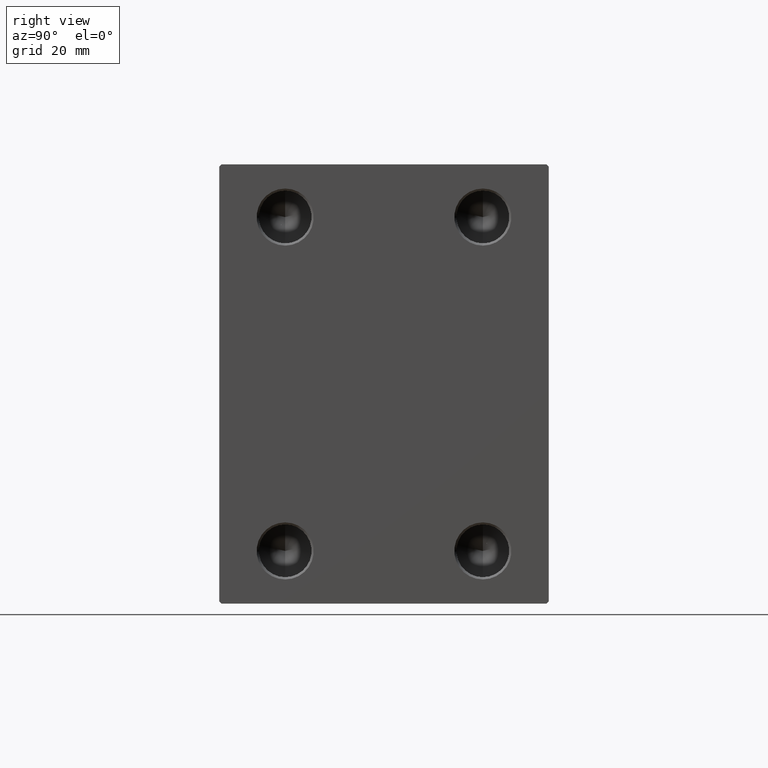
[diagram: clean part render]
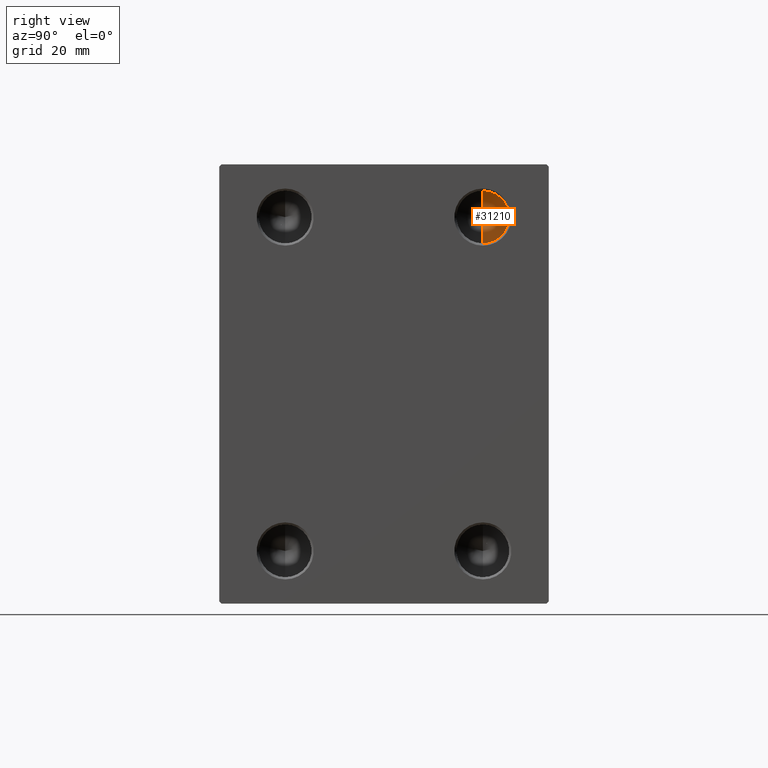
[diagram: same view with one face highlighted and labeled with its STEP entity id]
A machine part, right view. The second image highlights one B-rep face of the part: STEP entity #31210.
In plain terms, the highlighted conical surface has half-angle 59 deg.
Its self-contained STEP definition (entity closure, byte-faithful):
#229 = CIRCLE ( 'NONE', #10296, 5.999999999999998224 ) ;
#2081 = DIRECTION ( 'NONE',  ( 0.000000000000000000, 0.000000000000000000, 1.000000000000000000 ) ) ;
#2721 = DIRECTION ( 'NONE',  ( -1.000000000000000000, 0.000000000000000000, 0.000000000000000000 ) ) ;
#3236 = EDGE_CURVE ( 'NONE', #41316, #31687, #38046, .T. ) ;
#3915 = LINE ( 'NONE', #31357, #40059 ) ;
#8435 = CARTESIAN_POINT ( 'NONE',  ( 78.00000000000000000, 22.50000000000000000, 43.99999999999999289 ) ) ;
#10296 = AXIS2_PLACEMENT_3D ( 'NONE', #33526, #2721, #16441 ) ;
#11071 = VECTOR ( 'NONE', #27923, 1000.000000000000000 ) ;
#14088 = AXIS2_PLACEMENT_3D ( 'NONE', #19184, #22995, #2081 ) ;
#15719 = CARTESIAN_POINT ( 'NONE',  ( 74.39483628583464281, 22.49999999999999289, 37.99999999999999289 ) ) ;
#16101 = ORIENTED_EDGE ( 'NONE', *, *, #20275, .F. ) ;
#16441 = DIRECTION ( 'NONE',  ( 0.000000000000000000, 0.000000000000000000, 1.000000000000000000 ) ) ;
#17162 = CARTESIAN_POINT ( 'NONE',  ( 78.00000000000000000, 22.50000000000000000, 43.99999999999999289 ) ) ;
#19184 = CARTESIAN_POINT ( 'NONE',  ( 78.00000000000000000, 22.50000000000000000, 37.99999999999999289 ) ) ;
#20275 = EDGE_CURVE ( 'NONE', #31687, #41847, #229, .T. ) ;
#22995 = DIRECTION ( 'NONE',  ( 1.000000000000000000, -0.000000000000000000, -0.000000000000000000 ) ) ;
#27923 = DIRECTION ( 'NONE',  ( 0.5150380749100549327, 0.000000000000000000, 0.8571673007021118895 ) ) ;
#27964 = DIRECTION ( 'NONE',  ( 0.5150380749100549327, -1.049727191138618079E-16, -0.8571673007021118895 ) ) ;
#30565 = ORIENTED_EDGE ( 'NONE', *, *, #3236, .F. ) ;
#31210 = ADVANCED_FACE ( 'NONE', ( #36250 ), #37771, .F. ) ;
#31357 = CARTESIAN_POINT ( 'NONE',  ( 78.00000000000000000, 22.50000000000000000, 31.99999999999999289 ) ) ;
#31687 = VERTEX_POINT ( 'NONE', #8435 ) ;
#31982 = EDGE_LOOP ( 'NONE', ( #30565, #35286, #16101 ) ) ;
#33526 = CARTESIAN_POINT ( 'NONE',  ( 78.00000000000000000, 22.50000000000000000, 37.99999999999999289 ) ) ;
#35286 = ORIENTED_EDGE ( 'NONE', *, *, #36790, .T. ) ;
#36250 = FACE_OUTER_BOUND ( 'NONE', #31982, .T. ) ;
#36790 = EDGE_CURVE ( 'NONE', #41316, #41847, #3915, .T. ) ;
#37771 = CONICAL_SURFACE ( 'NONE', #14088, 5.999999999999998224, 1.029744258676653645 ) ;
#38046 = LINE ( 'NONE', #17162, #11071 ) ;
#40059 = VECTOR ( 'NONE', #27964, 1000.000000000000000 ) ;
#41316 = VERTEX_POINT ( 'NONE', #15719 ) ;
#41847 = VERTEX_POINT ( 'NONE', #42151 ) ;
#42151 = CARTESIAN_POINT ( 'NONE',  ( 78.00000000000000000, 22.50000000000000000, 31.99999999999999289 ) ) ;